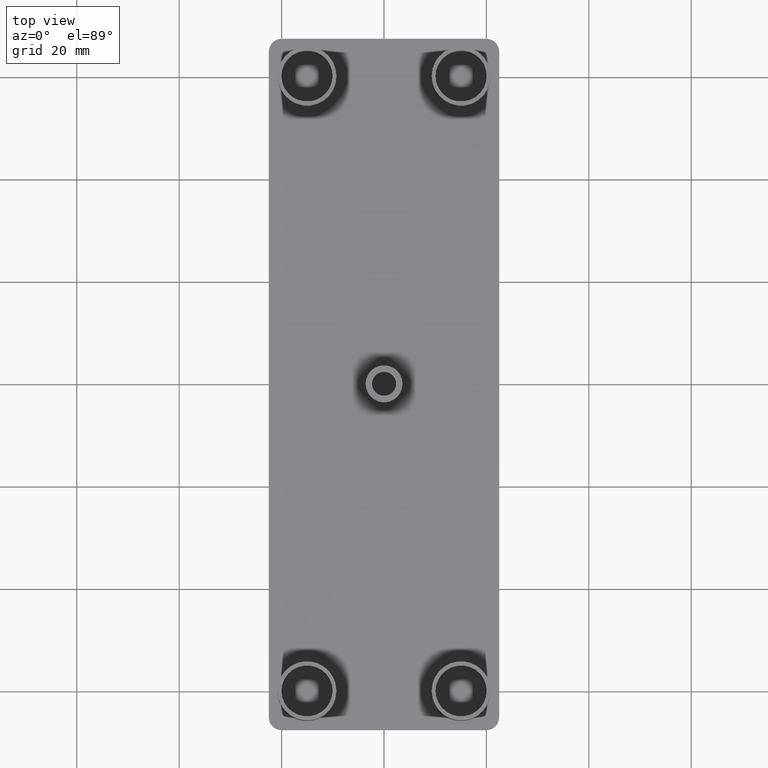
[diagram: clean part render]
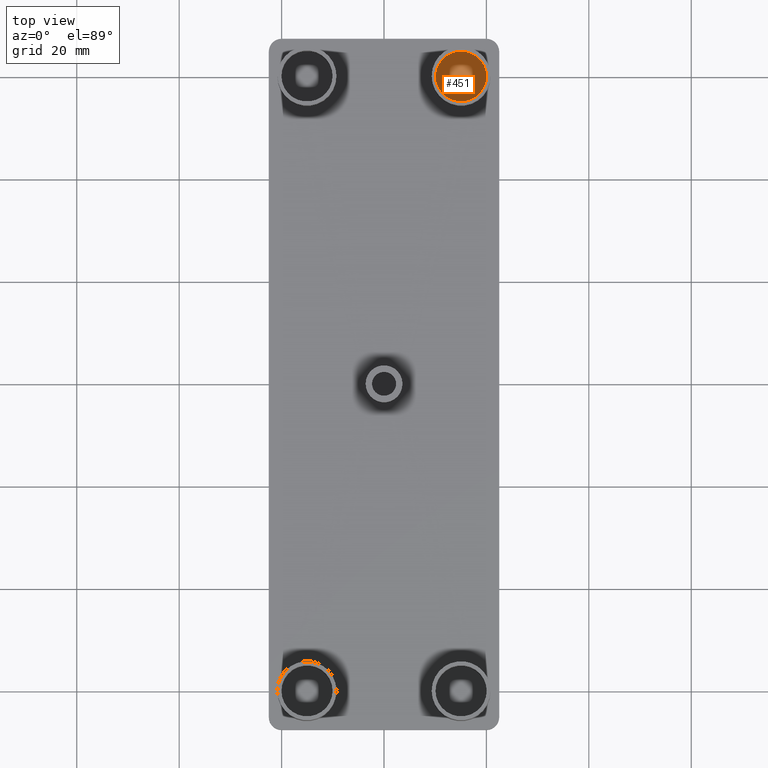
[diagram: same view with one face highlighted and labeled with its STEP entity id]
A machine part, top view. The second image highlights one B-rep face of the part: STEP entity #451.
In plain terms, the highlighted planar face has unit normal (0, 0, 1).
Its self-contained STEP definition (entity closure, byte-faithful):
#426=CARTESIAN_POINT('',(-26.999956730030135,-81.000005329483884,0.0));
#427=DIRECTION('',(0.0,0.0,1.0));
#428=DIRECTION('',(1.0,0.0,0.0));
#429=AXIS2_PLACEMENT_3D('',#426,#427,#428);
#430=PLANE('',#429);
#431=CARTESIAN_POINT('',(10.049999666625116,60.050000499759790,0.0));
#432=VERTEX_POINT('',#431);
#433=CARTESIAN_POINT('',(20.049999666585109,60.050000499759790,0.0));
#434=VERTEX_POINT('',#433);
#435=CARTESIAN_POINT('',(15.049999666605117,60.050000499759790,0.0));
#436=DIRECTION('',(0.0,0.0,-1.0));
#437=DIRECTION('',(1.0,0.0,0.0));
#438=AXIS2_PLACEMENT_3D('',#435,#436,#437);
#439=CIRCLE('',#438,4.999999999980001);
#440=EDGE_CURVE('',#432,#434,#439,.T.);
#441=ORIENTED_EDGE('',*,*,#440,.F.);
#442=CARTESIAN_POINT('',(15.049999666605117,60.050000499759790,0.0));
#443=DIRECTION('',(0.0,0.0,-1.0));
#444=DIRECTION('',(1.0,0.0,0.0));
#445=AXIS2_PLACEMENT_3D('',#442,#443,#444);
#446=CIRCLE('',#445,4.999999999980001);
#447=EDGE_CURVE('',#434,#432,#446,.T.);
#448=ORIENTED_EDGE('',*,*,#447,.F.);
#449=EDGE_LOOP('',(#441,#448));
#450=FACE_OUTER_BOUND('',#449,.T.);
#451=ADVANCED_FACE('',(#450),#430,.T.);